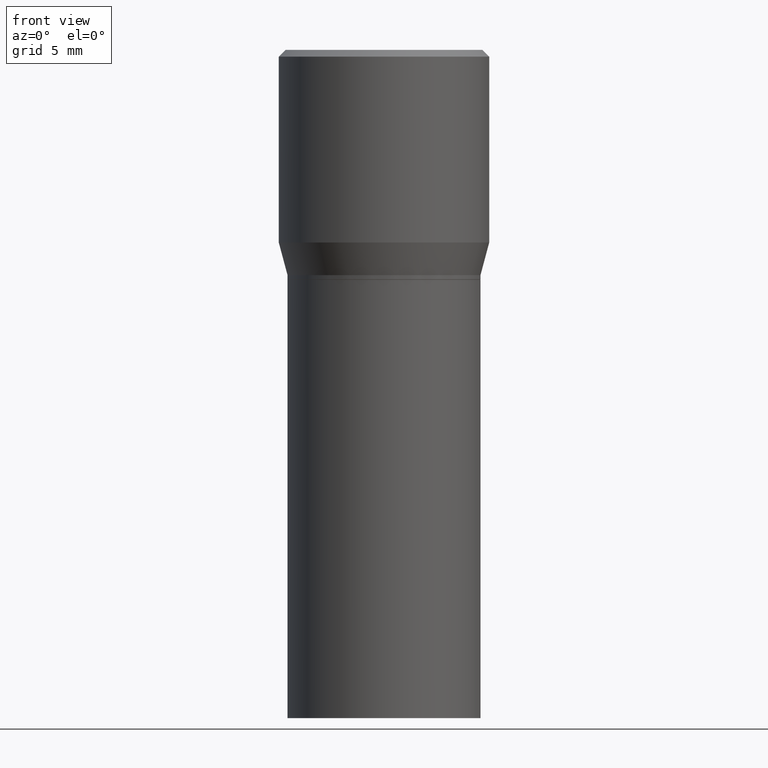
[diagram: clean part render]
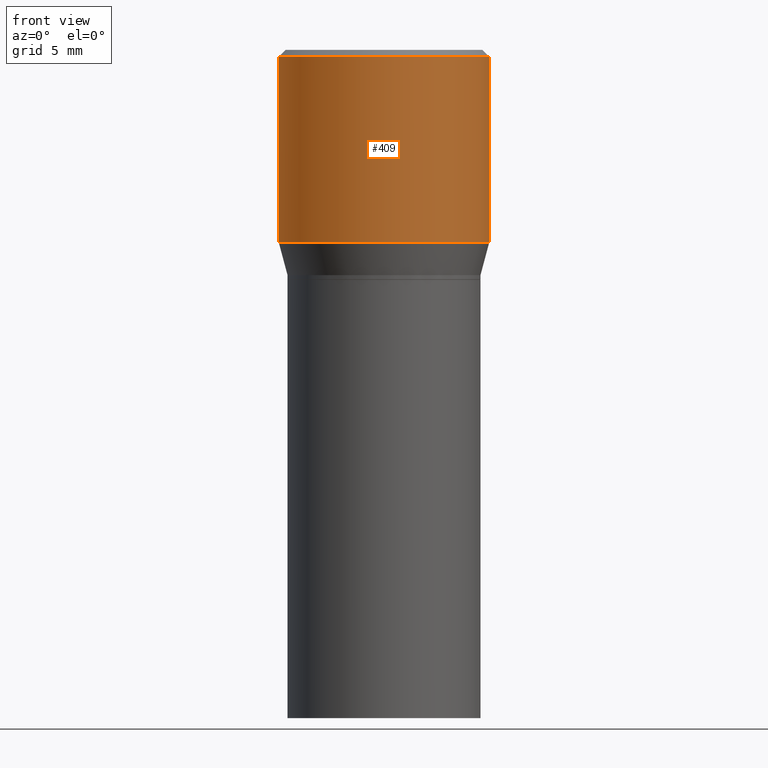
[diagram: same view with one face highlighted and labeled with its STEP entity id]
A machine part, front view. The second image highlights one B-rep face of the part: STEP entity #409.
In plain terms, the highlighted cylindrical surface (partial cylindrical patch) has radius 5.9995 mm, axis along (-0, 0, 1).
Its self-contained STEP definition (entity closure, byte-faithful):
#2 = AXIS2_PLACEMENT_3D ( 'NONE', #158, #240, #56 ) ;
#13 = DIRECTION ( 'NONE',  ( -2.445468806185136597E-29, 3.491481338843145583E-15, 1.000000000000000000 ) ) ;
#20 = CARTESIAN_POINT ( 'NONE',  ( 0.2361999999999999933, -3.158970817530236235E-15, -0.4323652016312719004 ) ) ;
#24 = CARTESIAN_POINT ( 'NONE',  ( 0.000000000000000000, 0.000000000000000000, 0.000000000000000000 ) ) ;
#56 = DIRECTION ( 'NONE',  ( 1.000000000000000000, -6.982962677686268288E-15, 0.000000000000000000 ) ) ;
#63 = DIRECTION ( 'NONE',  ( -2.445468806185136877E-29, 3.491481338843145188E-15, 1.000000000000000000 ) ) ;
#82 = ORIENTED_EDGE ( 'NONE', *, *, #121, .T. ) ;
#89 = CARTESIAN_POINT ( 'NONE',  ( 0.2361999999999999933, -1.701748004552143407E-15, -0.01499999999999999944 ) ) ;
#101 = LINE ( 'NONE', #195, #189 ) ;
#109 = DIRECTION ( 'NONE',  ( -2.445468806185136877E-29, 3.491481338843145188E-15, 1.000000000000000000 ) ) ;
#121 = EDGE_CURVE ( 'NONE', #256, #344, #101, .T. ) ;
#122 = CARTESIAN_POINT ( 'NONE',  ( -0.2361999999999999933, 8.973183152936629998E-16, -0.01499999999999999944 ) ) ;
#123 = CYLINDRICAL_SURFACE ( 'NONE', #388, 0.2361999999999999933 ) ;
#158 = CARTESIAN_POINT ( 'NONE',  ( 1.057335613469222325E-29, -1.509595033060739709E-15, -0.4323652016312719004 ) ) ;
#160 = EDGE_CURVE ( 'NONE', #261, #344, #363, .T. ) ;
#167 = DIRECTION ( 'NONE',  ( -2.445468806185136597E-29, 3.491481338843145583E-15, 1.000000000000000000 ) ) ;
#181 = VERTEX_POINT ( 'NONE', #391 ) ;
#189 = VECTOR ( 'NONE', #63, 39.37007874015748143 ) ;
#190 = VECTOR ( 'NONE', #109, 39.37007874015748143 ) ;
#195 = CARTESIAN_POINT ( 'NONE',  ( 0.2361999999999999933, -1.649375784469496131E-15, 1.151752954443000088E-29 ) ) ;
#196 = ORIENTED_EDGE ( 'NONE', *, *, #160, .F. ) ;
#214 = CARTESIAN_POINT ( 'NONE',  ( -0.2361999999999999933, 1.678301941865356591E-15, -1.161852468318208757E-29 ) ) ;
#221 = EDGE_LOOP ( 'NONE', ( #453, #441, #82, #196 ) ) ;
#240 = DIRECTION ( 'NONE',  ( -2.445468806185136597E-29, 3.491481338843145583E-15, 1.000000000000000000 ) ) ;
#256 = VERTEX_POINT ( 'NONE', #20 ) ;
#259 = FACE_OUTER_BOUND ( 'NONE', #221, .T. ) ;
#261 = VERTEX_POINT ( 'NONE', #122 ) ;
#295 = EDGE_CURVE ( 'NONE', #181, #261, #459, .T. ) ;
#300 = DIRECTION ( 'NONE',  ( 1.000000000000000000, -6.982962677686266711E-15, 0.000000000000000000 ) ) ;
#316 = EDGE_CURVE ( 'NONE', #181, #256, #428, .T. ) ;
#328 = AXIS2_PLACEMENT_3D ( 'NONE', #338, #13, #300 ) ;
#338 = CARTESIAN_POINT ( 'NONE',  ( 3.668203209277705088E-31, -5.237222008264718399E-17, -0.01499999999999999944 ) ) ;
#344 = VERTEX_POINT ( 'NONE', #89 ) ;
#363 = CIRCLE ( 'NONE', #328, 0.2361999999999999933 ) ;
#388 = AXIS2_PLACEMENT_3D ( 'NONE', #24, #167, #449 ) ;
#391 = CARTESIAN_POINT ( 'NONE',  ( -0.2361999999999999933, 1.687069088046168326E-16, -0.4323652016312719004 ) ) ;
#409 = ADVANCED_FACE ( 'NONE', ( #259 ), #123, .T. ) ;
#428 = CIRCLE ( 'NONE', #2, 0.2361999999999999933 ) ;
#441 = ORIENTED_EDGE ( 'NONE', *, *, #316, .T. ) ;
#449 = DIRECTION ( 'NONE',  ( 1.000000000000000000, -6.982962677686266711E-15, 4.876176775795936353E-29 ) ) ;
#453 = ORIENTED_EDGE ( 'NONE', *, *, #295, .F. ) ;
#459 = LINE ( 'NONE', #214, #190 ) ;